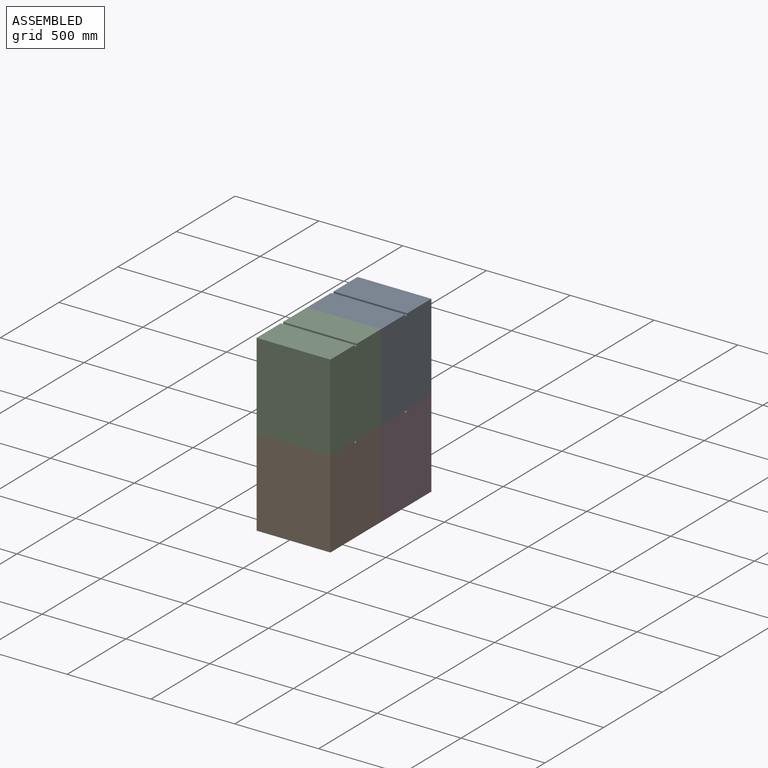
[diagram: assembled view]
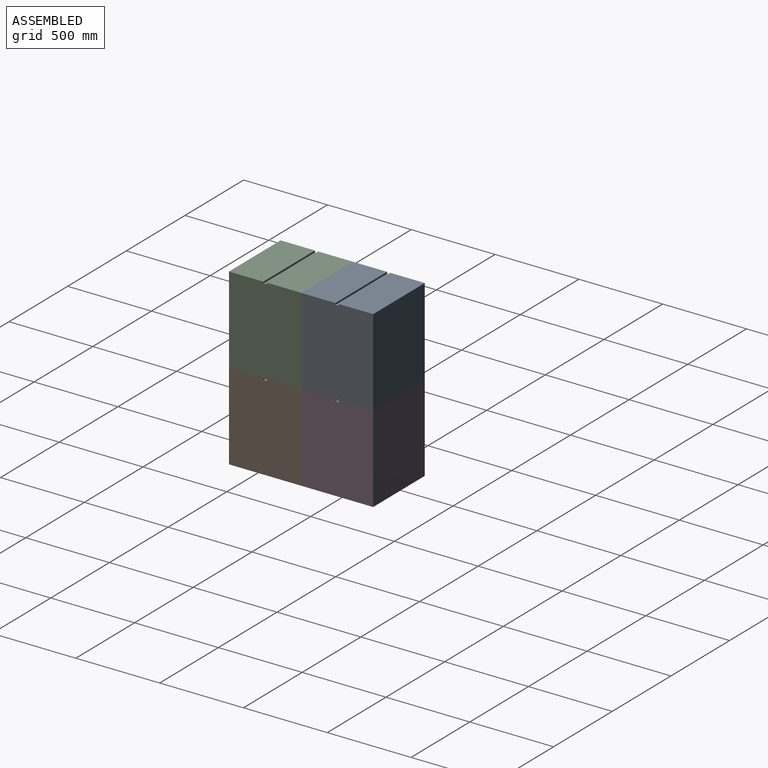
[diagram: assembled view, second angle]
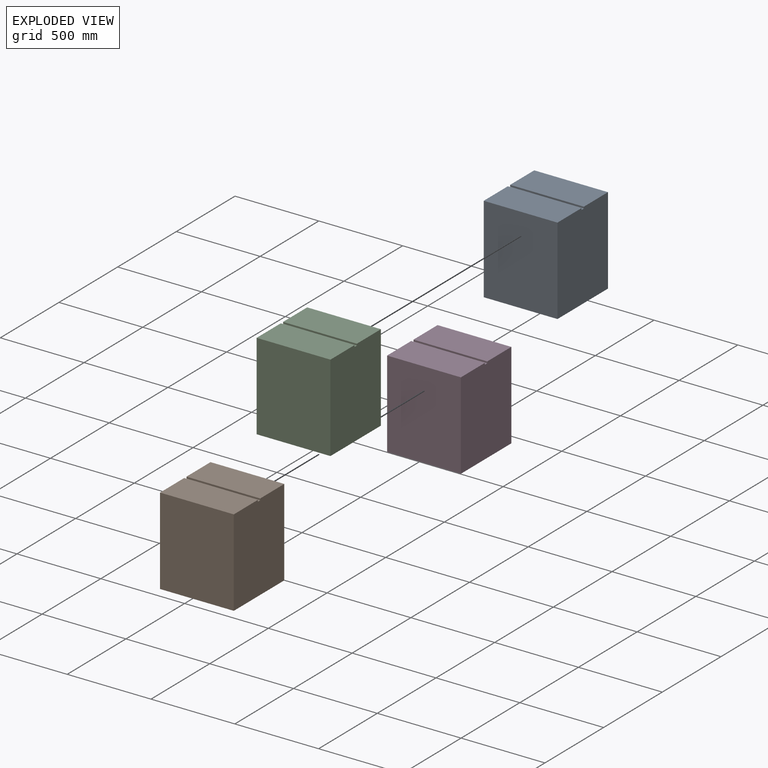
[diagram: exploded view]
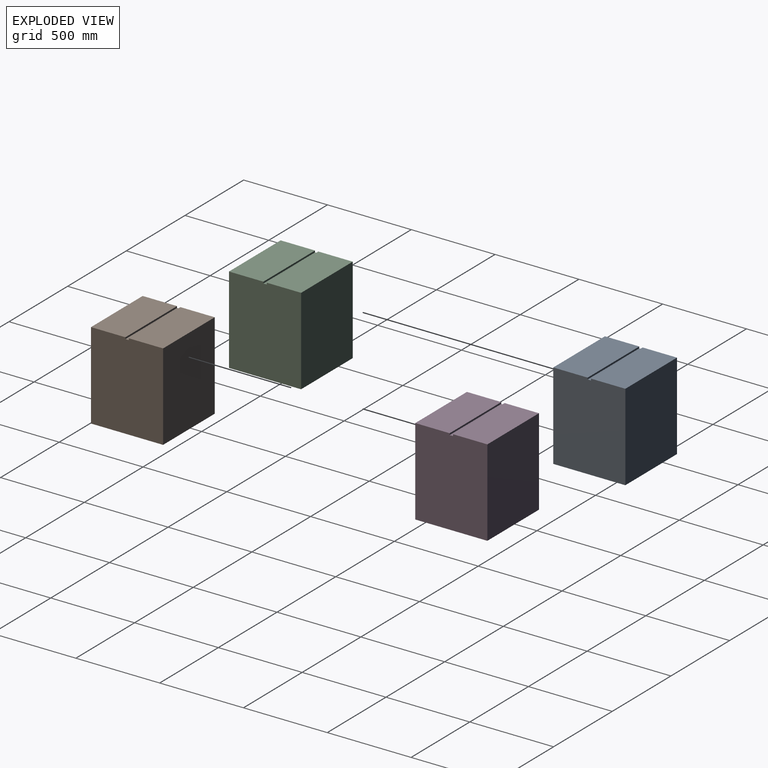
[diagram: exploded view, second angle]
ASSEMBLY  parts=4 mates=3
PART A: 10 faces, bbox 440x430x520 mm
  f0: plane 440x205mm, normal (0,0,1), area 90200mm2, adj f1,f2,f3,f8
  f1: plane 520x430mm, normal (-1,0,0), area 223400mm2, adj f0,f3,f4,f5,f6,f7,f8,f9
  f2: plane 520x430mm, normal (1,0,0), area 223400mm2, adj f0,f3,f4,f5,f6,f7,f8,f9
  f3: plane 520x440mm, normal (0,-1,0), area 228800mm2, adj f0,f1,f2,f4
  f4: plane 440x430mm, normal (0,0,-1), area 189200mm2, adj f1,f2,f3,f5
  f5: plane 520x440mm, normal (0,1,0), area 228800mm2, adj f1,f2,f4,f6
  f6: plane 440x205mm, normal (0,0,1), area 90200mm2, adj f1,f2,f5,f7
  f7: plane 440x10mm, normal (0,-1,0), area 4400mm2, adj f1,f2,f6,f9
  f8: plane 440x10mm, normal (0,1,0), area 4400mm2, adj f0,f1,f2,f9
  f9: plane 440x20mm, normal (0,0,1), area 8800mm2, adj f1,f2,f7,f8
PART B: same geometry as A
PART C: same geometry as A
PART D: same geometry as A
PLACE A t=(1272.31,944.67,338.71)mm
PLACE B t=(1272.31,514.67,-181.29)mm
PLACE C t=(1272.31,514.67,338.71)mm
PLACE D t=(1272.31,944.67,-181.29)mm
MATE fastened A.f3 <-> C.f5  axis (0,-1,0) through (1272.31,784.06,202.27)mm
MATE fastened C.f4 <-> B.f0  axis (0,0,-1) through (1272.31,354.06,202.27)mm
MATE fastened D.f3 <-> B.f5  axis (0,-1,0) through (1272.31,784.06,-317.73)mm
